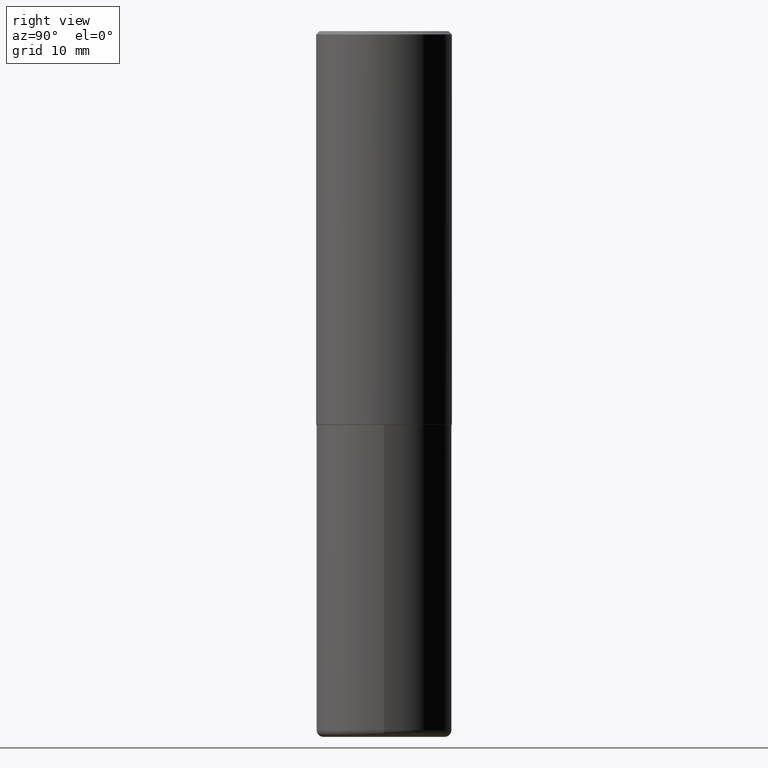
[diagram: clean part render]
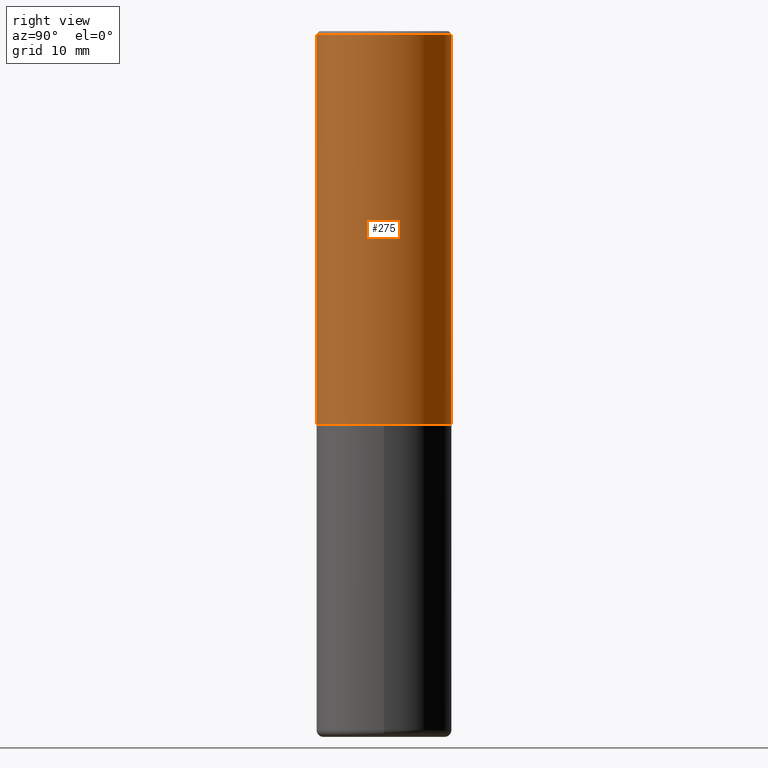
[diagram: same view with one face highlighted and labeled with its STEP entity id]
A machine part, right view. The second image highlights one B-rep face of the part: STEP entity #275.
In plain terms, the highlighted cylindrical surface (partial cylindrical patch) has radius 10 mm, axis along (-0, 0, 1).
Its self-contained STEP definition (entity closure, byte-faithful):
#15 = LINE ( 'NONE', #52, #283 ) ;
#42 = CIRCLE ( 'NONE', #150, 0.3937000000000002720 ) ;
#52 = CARTESIAN_POINT ( 'NONE',  ( 2.797406750687515181E-15, 0.3937000000000001609, -1.373989289586971557E-15 ) ) ;
#58 = CYLINDRICAL_SURFACE ( 'NONE', #373, 0.3937000000000001609 ) ;
#75 = ORIENTED_EDGE ( 'NONE', *, *, #346, .F. ) ;
#89 = FACE_OUTER_BOUND ( 'NONE', #321, .T. ) ;
#118 = DIRECTION ( 'NONE',  ( -2.446545274162745389E-29, 3.489939775430457441E-15, 1.000000000000000000 ) ) ;
#126 = CARTESIAN_POINT ( 'NONE',  ( 0.000000000000000000, 0.000000000000000000, 0.000000000000000000 ) ) ;
#149 = CARTESIAN_POINT ( 'NONE',  ( 5.584239588276467211E-29, -7.965787537420020215E-15, -2.282500000000000195 ) ) ;
#150 = AXIS2_PLACEMENT_3D ( 'NONE', #149, #395, #271 ) ;
#163 = EDGE_CURVE ( 'NONE', #384, #233, #42, .T. ) ;
#182 = CARTESIAN_POINT ( 'NONE',  ( 4.893090548325511413E-31, -6.979879550860944317E-17, -0.02000000000000008715 ) ) ;
#193 = DIRECTION ( 'NONE',  ( -2.446545274162745389E-29, 3.489939775430457441E-15, 1.000000000000000000 ) ) ;
#224 = DIRECTION ( 'NONE',  ( -2.446545274162745389E-29, 3.489939775430457441E-15, 1.000000000000000000 ) ) ;
#225 = ORIENTED_EDGE ( 'NONE', *, *, #339, .T. ) ;
#230 = ORIENTED_EDGE ( 'NONE', *, *, #163, .T. ) ;
#231 = CIRCLE ( 'NONE', #312, 0.3937000000000000499 ) ;
#233 = VERTEX_POINT ( 'NONE', #399 ) ;
#246 = CARTESIAN_POINT ( 'NONE',  ( -2.749192406205029180E-15, -0.3937000000000082656, -2.282499999999998863 ) ) ;
#252 = LINE ( 'NONE', #406, #337 ) ;
#271 = DIRECTION ( 'NONE',  ( -6.982962677686265922E-15, -1.000000000000000000, 3.469453890861393601E-15 ) ) ;
#275 = ADVANCED_FACE ( 'NONE', ( #89 ), #58, .T. ) ;
#278 = DIRECTION ( 'NONE',  ( -6.982962677686265133E-15, -1.000000000000000000, 3.491137977679279424E-15 ) ) ;
#283 = VECTOR ( 'NONE', #224, 39.37007874015748143 ) ;
#284 = DIRECTION ( 'NONE',  ( -2.446545274162745389E-29, 3.489939775430457441E-15, 1.000000000000000000 ) ) ;
#312 = AXIS2_PLACEMENT_3D ( 'NONE', #182, #284, #278 ) ;
#313 = CARTESIAN_POINT ( 'NONE',  ( -2.700978061722651252E-15, -0.3937000000000001054, -0.01999999999999870978 ) ) ;
#315 = DIRECTION ( 'NONE',  ( -6.982962677686265922E-15, -1.000000000000000000, 3.489939775430457047E-15 ) ) ;
#321 = EDGE_LOOP ( 'NONE', ( #230, #225, #75, #402 ) ) ;
#337 = VECTOR ( 'NONE', #193, 39.37007874015748143 ) ;
#339 = EDGE_CURVE ( 'NONE', #233, #383, #15, .T. ) ;
#346 = EDGE_CURVE ( 'NONE', #391, #383, #231, .T. ) ;
#356 = EDGE_CURVE ( 'NONE', #384, #391, #252, .T. ) ;
#373 = AXIS2_PLACEMENT_3D ( 'NONE', #126, #118, #315 ) ;
#383 = VERTEX_POINT ( 'NONE', #401 ) ;
#384 = VERTEX_POINT ( 'NONE', #246 ) ;
#391 = VERTEX_POINT ( 'NONE', #313 ) ;
#395 = DIRECTION ( 'NONE',  ( -2.446545274162745389E-29, 3.489939775430457441E-15, 1.000000000000000000 ) ) ;
#399 = CARTESIAN_POINT ( 'NONE',  ( 2.797406750687543580E-15, 0.3936999999999923339, -2.282500000000001528 ) ) ;
#401 = CARTESIAN_POINT ( 'NONE',  ( 2.749192406205083217E-15, 0.3936999999999999389, -0.02000000000000146105 ) ) ;
#402 = ORIENTED_EDGE ( 'NONE', *, *, #356, .F. ) ;
#406 = CARTESIAN_POINT ( 'NONE',  ( -2.749192406205084005E-15, -0.3937000000000001609, 1.373989289586971557E-15 ) ) ;